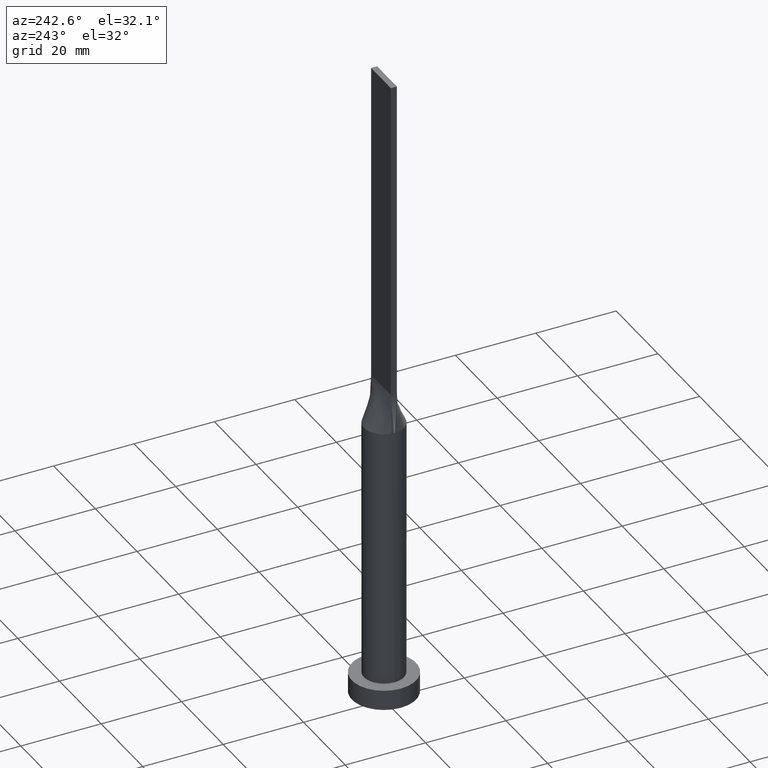
[diagram: clean part render]
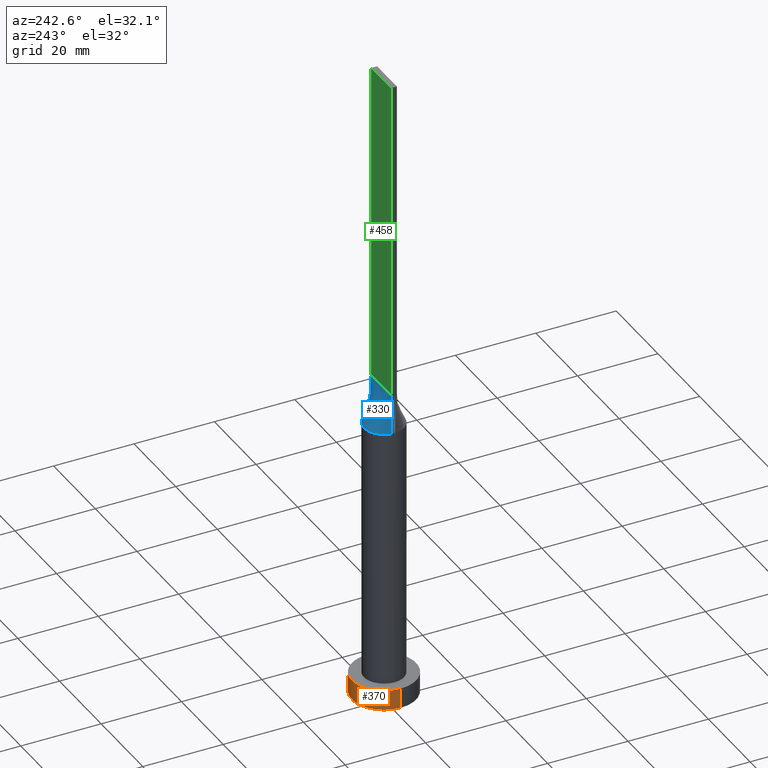
[diagram: same view with three faces highlighted in distinct colors, each labeled with its STEP entity id]
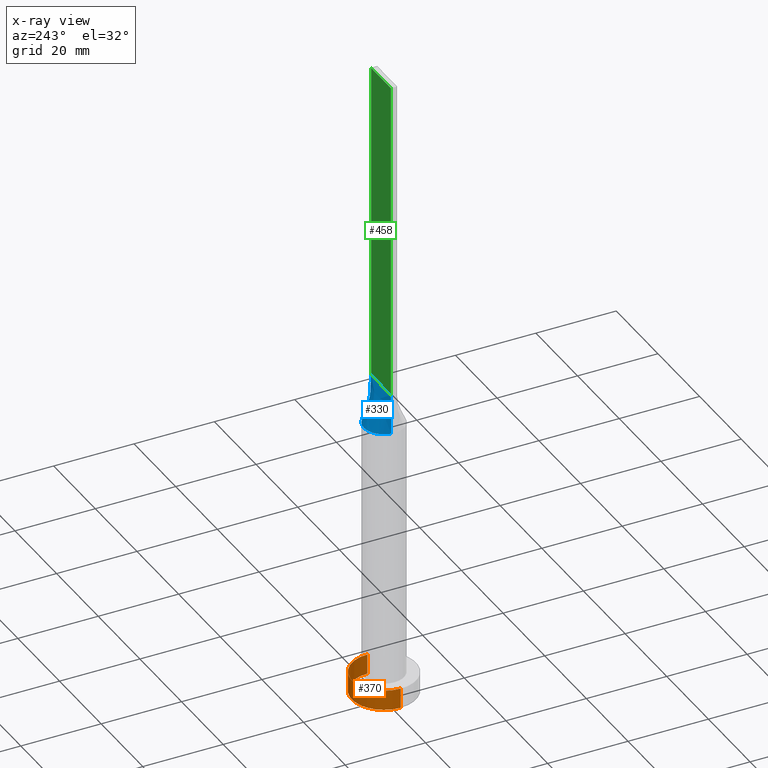
[diagram: x-ray of the same camera — body ghosted, the three highlighted faces saturated]
A machine part, auxiliary view with three faces highlighted in distinct colors.
The next image is the same camera in x-ray (body ghosted, the three faces saturated) — at least one of them is partly hidden behind the body in this view.
Their STEP definitions:

[orange] entity #370 — the highlighted cylindrical surface (edge-blend (fillet) strip) has radius 8 mm, axis along (-0, -0, -1).
#19 = EDGE_CURVE ( 'NONE', #613, #430, #517, .T. ) ;
#42 = ORIENTED_EDGE ( 'NONE', *, *, #19, .F. ) ;
#100 = CYLINDRICAL_SURFACE ( 'NONE', #409, 8.000000000000000000 ) ;
#109 = DIRECTION ( 'NONE',  ( -0.000000000000000000, -0.000000000000000000, -1.000000000000000000 ) ) ;
#116 = CARTESIAN_POINT ( 'NONE',  ( -8.000000000000000000, 0.000000000000000000, 0.000000000000000000 ) ) ;
#134 = DIRECTION ( 'NONE',  ( 0.000000000000000000, 0.000000000000000000, 1.000000000000000000 ) ) ;
#139 = DIRECTION ( 'NONE',  ( 1.000000000000000000, 0.000000000000000000, 0.000000000000000000 ) ) ;
#160 = CARTESIAN_POINT ( 'NONE',  ( 8.000000000000000000, 9.797174393178825657E-16, 5.000000000000000000 ) ) ;
#162 = AXIS2_PLACEMENT_3D ( 'NONE', #484, #289, #196 ) ;
#173 = EDGE_CURVE ( 'NONE', #430, #604, #244, .T. ) ;
#196 = DIRECTION ( 'NONE',  ( 1.000000000000000000, 0.000000000000000000, 0.000000000000000000 ) ) ;
#202 = DIRECTION ( 'NONE',  ( -0.000000000000000000, -0.000000000000000000, -1.000000000000000000 ) ) ;
#204 = CARTESIAN_POINT ( 'NONE',  ( 8.000000000000000000, 9.797174393178825657E-16, 0.000000000000000000 ) ) ;
#223 = ORIENTED_EDGE ( 'NONE', *, *, #551, .T. ) ;
#243 = FACE_OUTER_BOUND ( 'NONE', #311, .T. ) ;
#244 = LINE ( 'NONE', #485, #278 ) ;
#278 = VECTOR ( 'NONE', #450, 1000.000000000000000 ) ;
#286 = CARTESIAN_POINT ( 'NONE',  ( 0.000000000000000000, 0.000000000000000000, 5.000000000000000000 ) ) ;
#289 = DIRECTION ( 'NONE',  ( 0.000000000000000000, 0.000000000000000000, 1.000000000000000000 ) ) ;
#311 = EDGE_LOOP ( 'NONE', ( #42, #223, #480, #338 ) ) ;
#338 = ORIENTED_EDGE ( 'NONE', *, *, #173, .F. ) ;
#341 = VECTOR ( 'NONE', #109, 1000.000000000000000 ) ;
#370 = ADVANCED_FACE ( 'NONE', ( #243 ), #100, .T. ) ;
#381 = EDGE_CURVE ( 'NONE', #425, #604, #432, .T. ) ;
#382 = CARTESIAN_POINT ( 'NONE',  ( 0.000000000000000000, 0.000000000000000000, 5.000000000000000000 ) ) ;
#389 = AXIS2_PLACEMENT_3D ( 'NONE', #382, #134, #139 ) ;
#409 = AXIS2_PLACEMENT_3D ( 'NONE', #286, #202, #524 ) ;
#412 = LINE ( 'NONE', #160, #341 ) ;
#425 = VERTEX_POINT ( 'NONE', #204 ) ;
#430 = VERTEX_POINT ( 'NONE', #581 ) ;
#432 = CIRCLE ( 'NONE', #162, 8.000000000000000000 ) ;
#450 = DIRECTION ( 'NONE',  ( -0.000000000000000000, -0.000000000000000000, -1.000000000000000000 ) ) ;
#480 = ORIENTED_EDGE ( 'NONE', *, *, #381, .T. ) ;
#484 = CARTESIAN_POINT ( 'NONE',  ( 0.000000000000000000, 0.000000000000000000, 0.000000000000000000 ) ) ;
#485 = CARTESIAN_POINT ( 'NONE',  ( -8.000000000000000000, 0.000000000000000000, 5.000000000000000000 ) ) ;
#517 = CIRCLE ( 'NONE', #389, 8.000000000000000000 ) ;
#524 = DIRECTION ( 'NONE',  ( -1.000000000000000000, 0.000000000000000000, 0.000000000000000000 ) ) ;
#551 = EDGE_CURVE ( 'NONE', #613, #425, #412, .T. ) ;
#581 = CARTESIAN_POINT ( 'NONE',  ( -8.000000000000000000, 0.000000000000000000, 5.000000000000000000 ) ) ;
#586 = CARTESIAN_POINT ( 'NONE',  ( 8.000000000000000000, 9.797174393178825657E-16, 5.000000000000000000 ) ) ;
#604 = VERTEX_POINT ( 'NONE', #116 ) ;
#613 = VERTEX_POINT ( 'NONE', #586 ) ;

[blue] entity #330 — the highlighted face is a freeform B-spline surface patch.
#3 = CARTESIAN_POINT ( 'NONE',  ( 4.029217956433126524, 3.021257902548482477, 70.00000000000001421 ) ) ;
#4 = EDGE_CURVE ( 'NONE', #115, #18, #372, .T. ) ;
#10 = CARTESIAN_POINT ( 'NONE',  ( -4.029217956433124748, 3.021257902548482033, 70.00000000000001421 ) ) ;
#18 = VERTEX_POINT ( 'NONE', #334 ) ;
#34 = CARTESIAN_POINT ( 'NONE',  ( 2.353781608410062454, 4.424438117685770777, 70.00000000000001421 ) ) ;
#35 = CARTESIAN_POINT ( 'NONE',  ( 4.874625637456157179, 1.186344398896585606, 70.00000000000001421 ) ) ;
#37 = CARTESIAN_POINT ( 'NONE',  ( -0.3560391241594593192, 5.000000000000000000, 70.00000000000001421 ) ) ;
#43 = CARTESIAN_POINT ( 'NONE',  ( -1.732223102076449806, 4.702695359254402518, 69.99999999999998579 ) ) ;
#44 = EDGE_CURVE ( 'NONE', #179, #84, #256, .T. ) ;
#50 = CARTESIAN_POINT ( 'NONE',  ( 2.643217737595826566, 4.256483892511437439, 69.99999999999998579 ) ) ;
#53 = CARTESIAN_POINT ( 'NONE',  ( -3.404830936252120299, 3.673931880027067720, 70.00000000000001421 ) ) ;
#55 = CARTESIAN_POINT ( 'NONE',  ( -3.168723755431092748, 3.881165404529570484, 69.99999999999998579 ) ) ;
#57 = CARTESIAN_POINT ( 'NONE',  ( -1.583333333333335924, 0.7500000000000002220, 79.99999999999997158 ) ) ;
#70 = EDGE_CURVE ( 'NONE', #179, #115, #387, .T. ) ;
#79 = EDGE_CURVE ( 'NONE', #84, #18, #575, .T. ) ;
#84 = VERTEX_POINT ( 'NONE', #150 ) ;
#88 = VECTOR ( 'NONE', #200, 1000.000000000000114 ) ;
#91 = CARTESIAN_POINT ( 'NONE',  ( -0.7119876437238006339, 4.961551549233178982, 70.00000000000000000 ) ) ;
#95 = CARTESIAN_POINT ( 'NONE',  ( 1.979166666666662078, 0.7500000000000002220, 79.99999999999998579 ) ) ;
#99 = ORIENTED_EDGE ( 'NONE', *, *, #44, .T. ) ;
#101 = CARTESIAN_POINT ( 'NONE',  ( -0.7119876437238006339, 4.961551549233178982, 70.00000000000000000 ) ) ;
#105 = CARTESIAN_POINT ( 'NONE',  ( 3.404830936252119411, 3.673931880027066388, 70.00000000000000000 ) ) ;
#107 = CARTESIAN_POINT ( 'NONE',  ( -1.732223102076449806, 4.702695359254402518, 69.99999999999998579 ) ) ;
#115 = VERTEX_POINT ( 'NONE', #340 ) ;
#138 = CARTESIAN_POINT ( 'NONE',  ( 1.583333333333328596, 0.7500000000000002220, 79.99999999999998579 ) ) ;
#146 = CARTESIAN_POINT ( 'NONE',  ( 4.938814826645345768, 0.7798128673650542853, 70.00000000000000000 ) ) ;
#149 = CARTESIAN_POINT ( 'NONE',  ( -1.979166666666668961, 0.7500000000000002220, 79.99999999999997158 ) ) ;
#150 = CARTESIAN_POINT ( 'NONE',  ( -4.938831943662458812, 0.7798155886440081286, 70.00000000000000000 ) ) ;
#151 = CARTESIAN_POINT ( 'NONE',  ( -3.166666666666668739, 0.7500000000000002220, 79.99999999999998579 ) ) ;
#154 = CARTESIAN_POINT ( 'NONE',  ( -4.938814826645345768, 0.7798128673650545073, 70.00000000000000000 ) ) ;
#155 = CARTESIAN_POINT ( 'NONE',  ( -1.400150253878312823, 4.812847332616943419, 70.00000000000001421 ) ) ;
#158 = DIRECTION ( 'NONE',  ( 0.01887803397728733332, -0.002980742206940074218, 0.9998173508241633423 ) ) ;
#178 = CARTESIAN_POINT ( 'NONE',  ( 4.753727492665065668, 1.629988260829201563, 70.00000000000000000 ) ) ;
#179 = VERTEX_POINT ( 'NONE', #590 ) ;
#188 = CARTESIAN_POINT ( 'NONE',  ( 3.166666666666663854, 0.7500000000000002220, 79.99999999999998579 ) ) ;
#197 = CARTESIAN_POINT ( 'NONE',  ( -0.3560391241594593192, 5.000000000000000000, 70.00000000000001421 ) ) ;
#199 = CARTESIAN_POINT ( 'NONE',  ( -4.874625637456156291, 1.186344398896586716, 70.00000000000000000 ) ) ;
#200 = DIRECTION ( 'NONE',  ( -0.01887803397728733332, -0.002980742206940009600, 0.9998173508241633423 ) ) ;
#203 = CARTESIAN_POINT ( 'NONE',  ( -4.029217956433124748, 3.021257902548482033, 70.00000000000001421 ) ) ;
#208 = CARTESIAN_POINT ( 'NONE',  ( -2.353781608410062010, 4.424438117685770777, 69.99999999999998579 ) ) ;
#229 = CARTESIAN_POINT ( 'NONE',  ( 1.385416666666662078, 0.7500000000000002220, 79.99999999999998579 ) ) ;
#230 = CARTESIAN_POINT ( 'NONE',  ( -4.750000000000000000, 0.7500000000000002220, 80.00000000000000000 ) ) ;
#233 = CARTESIAN_POINT ( 'NONE',  ( -0.1979166666666694052, 0.7500000000000002220, 79.99999999999997158 ) ) ;
#236 = CARTESIAN_POINT ( 'NONE',  ( -1.400150253878312823, 4.812847332616943419, 70.00000000000001421 ) ) ;
#240 = CARTESIAN_POINT ( 'NONE',  ( 2.770833333333329929, 0.7500000000000002220, 79.99999999999998579 ) ) ;
#245 = CARTESIAN_POINT ( 'NONE',  ( -2.643217737595827455, 4.256483892511438327, 70.00000000000000000 ) ) ;
#246 = CARTESIAN_POINT ( 'NONE',  ( -4.332026455536841070, 2.547220758687717801, 70.00000000000000000 ) ) ;
#250 = CARTESIAN_POINT ( 'NONE',  ( 2.353781608410062454, 4.424438117685770777, 70.00000000000001421 ) ) ;
#252 = CARTESIAN_POINT ( 'NONE',  ( -4.750000000000000000, 0.7500000000000002220, 80.00000000000000000 ) ) ;
#253 = CARTESIAN_POINT ( 'NONE',  ( -4.938831943662458812, 0.7798155886440081286, 70.00000000000000000 ) ) ;
#256 = B_SPLINE_CURVE_WITH_KNOTS ( 'NONE', 3,
 ( #323, #35, #421, #610, #3, #105, #440, #50, #250, #621, #492, #390, #434, #197, #101, #155, #107, #443, #346, #55, #53, #203, #246, #290, #304, #253 ),
 .UNSPECIFIED., .F., .F.,
 ( 4, 2, 2, 2, 2, 2, 2, 2, 2, 2, 2, 2, 4 ),
 ( 0.000000000000000000, 0.1250000000000001388, 0.2500000000000002220, 0.3125000000000002776, 0.3750000000000002776, 0.4375000000000002776, 0.5000000000000002220, 0.5625000000000002220, 0.6250000000000001110, 0.6875000000000001110, 0.7500000000000001110, 0.8750000000000001110, 1.000000000000000000 ),
 .UNSPECIFIED. ) ;
#262 = EDGE_LOOP ( 'NONE', ( #99, #554, #414, #357 ) ) ;
#273 = DIRECTION ( 'NONE',  ( -1.000000000000000000, -0.000000000000000000, -0.000000000000000000 ) ) ;
#275 = CARTESIAN_POINT ( 'NONE',  ( 2.177083333333329040, 0.7500000000000002220, 79.99999999999998579 ) ) ;
#276 = VECTOR ( 'NONE', #273, 1000.000000000000000 ) ;
#284 = CARTESIAN_POINT ( 'NONE',  ( 1.732223102076450250, 4.702695359254404295, 69.99999999999998579 ) ) ;
#290 = CARTESIAN_POINT ( 'NONE',  ( -4.753727492665067444, 1.629988260829202007, 70.00000000000001421 ) ) ;
#291 = CARTESIAN_POINT ( 'NONE',  ( -3.168723755431092748, 3.881165404529570484, 69.99999999999998579 ) ) ;
#304 = CARTESIAN_POINT ( 'NONE',  ( -4.874625637456156291, 1.186344398896586716, 70.00000000000000000 ) ) ;
#323 = CARTESIAN_POINT ( 'NONE',  ( 4.938814826645345768, 0.7798128673650538412, 70.00000000000000000 ) ) ;
#325 = CARTESIAN_POINT ( 'NONE',  ( 0.3958333333333295401, 0.7500000000000002220, 79.99999999999998579 ) ) ;
#330 = ADVANCED_FACE ( 'NONE', ( #415 ), #563, .T. ) ;
#333 = CARTESIAN_POINT ( 'NONE',  ( 3.168723755431093192, 3.881165404529570040, 69.99999999999998579 ) ) ;
#334 = CARTESIAN_POINT ( 'NONE',  ( -4.750000000000000000, 0.7500000000000002220, 80.00000000000000000 ) ) ;
#340 = CARTESIAN_POINT ( 'NONE',  ( 4.750000000000000000, 0.7500000000000002220, 80.00000000000000000 ) ) ;
#346 = CARTESIAN_POINT ( 'NONE',  ( -2.643217737595827455, 4.256483892511438327, 70.00000000000000000 ) ) ;
#349 = CARTESIAN_POINT ( 'NONE',  ( -2.177083333333335702, 0.7500000000000002220, 79.99999999999997158 ) ) ;
#357 = ORIENTED_EDGE ( 'NONE', *, *, #70, .F. ) ;
#371 = CARTESIAN_POINT ( 'NONE',  ( 3.958333333333332149, 0.7500000000000002220, 80.00000000000000000 ) ) ;
#372 = LINE ( 'NONE', #230, #276 ) ;
#374 = CARTESIAN_POINT ( 'NONE',  ( 4.332026455536839293, 2.547220758687718689, 69.99999999999998579 ) ) ;
#387 = LINE ( 'NONE', #437, #88 ) ;
#388 = CARTESIAN_POINT ( 'NONE',  ( -2.770833333333335702, 0.7500000000000002220, 79.99999999999998579 ) ) ;
#390 = CARTESIAN_POINT ( 'NONE',  ( 0.7119876437238013001, 4.961551549233180758, 70.00000000000001421 ) ) ;
#392 = CARTESIAN_POINT ( 'NONE',  ( -0.9895833333333367010, 0.7500000000000002220, 79.99999999999997158 ) ) ;
#414 = ORIENTED_EDGE ( 'NONE', *, *, #4, .F. ) ;
#415 = FACE_OUTER_BOUND ( 'NONE', #262, .T. ) ;
#419 = CARTESIAN_POINT ( 'NONE',  ( 1.400150253878312823, 4.812847332616943419, 70.00000000000000000 ) ) ;
#421 = CARTESIAN_POINT ( 'NONE',  ( 4.753727492665065668, 1.629988260829201563, 70.00000000000000000 ) ) ;
#427 = CARTESIAN_POINT ( 'NONE',  ( -0.7916666666666702934, 0.7500000000000002220, 79.99999999999997158 ) ) ;
#434 = CARTESIAN_POINT ( 'NONE',  ( 0.3560391241594590972, 5.000000000000001776, 70.00000000000001421 ) ) ;
#437 = CARTESIAN_POINT ( 'NONE',  ( 4.844407413322673328, 0.7649064336825270871, 75.00000000000001421 ) ) ;
#440 = CARTESIAN_POINT ( 'NONE',  ( 3.168723755431093192, 3.881165404529570040, 69.99999999999998579 ) ) ;
#443 = CARTESIAN_POINT ( 'NONE',  ( -2.353781608410062010, 4.424438117685770777, 69.99999999999998579 ) ) ;
#444 = CARTESIAN_POINT ( 'NONE',  ( -3.404830936252120299, 3.673931880027067720, 70.00000000000001421 ) ) ;
#465 = CARTESIAN_POINT ( 'NONE',  ( 3.404830936252119411, 3.673931880027066388, 70.00000000000000000 ) ) ;
#468 = CARTESIAN_POINT ( 'NONE',  ( 0.1979166666666636876, 0.7500000000000001110, 79.99999999999997158 ) ) ;
#472 = CARTESIAN_POINT ( 'NONE',  ( -0.3958333333333367565, 0.7500000000000002220, 79.99999999999997158 ) ) ;
#476 = CARTESIAN_POINT ( 'NONE',  ( 0.9895833333333285964, 0.7500000000000002220, 79.99999999999998579 ) ) ;
#478 = CARTESIAN_POINT ( 'NONE',  ( -4.753727492665067444, 1.629988260829202007, 70.00000000000001421 ) ) ;
#490 = CARTESIAN_POINT ( 'NONE',  ( -3.958333333333334370, 0.7500000000000002220, 79.99999999999998579 ) ) ;
#492 = CARTESIAN_POINT ( 'NONE',  ( 1.400150253878312823, 4.812847332616943419, 70.00000000000000000 ) ) ;
#509 = CARTESIAN_POINT ( 'NONE',  ( 4.750000000000000000, 0.7500000000000002220, 80.00000000000000000 ) ) ;
#512 = CARTESIAN_POINT ( 'NONE',  ( 4.874625637456157179, 1.186344398896585606, 70.00000000000001421 ) ) ;
#515 = CARTESIAN_POINT ( 'NONE',  ( 0.3560391241594590972, 5.000000000000001776, 70.00000000000001421 ) ) ;
#518 = CARTESIAN_POINT ( 'NONE',  ( 4.029217956433126524, 3.021257902548482477, 70.00000000000001421 ) ) ;
#533 = CARTESIAN_POINT ( 'NONE',  ( -4.332026455536841070, 2.547220758687717801, 70.00000000000000000 ) ) ;
#554 = ORIENTED_EDGE ( 'NONE', *, *, #79, .T. ) ;
#561 = CARTESIAN_POINT ( 'NONE',  ( 0.7119876437238013001, 4.961551549233180758, 70.00000000000001421 ) ) ;
#563 = B_SPLINE_SURFACE_WITH_KNOTS ( 'NONE', 3, 1, ( 
 ( #146, #509 ),
 ( #512, #603 ),
 ( #178, #371 ),
 ( #374, #188 ),
 ( #518, #240 ),
 ( #465, #275 ),
 ( #333, #95 ),
 ( #565, #138 ),
 ( #34, #229 ),
 ( #284, #476 ),
 ( #419, #609 ),
 ( #561, #325 ),
 ( #515, #468 ),
 ( #37, #233 ),
 ( #91, #472 ),
 ( #236, #427 ),
 ( #43, #392 ),
 ( #208, #583 ),
 ( #245, #57 ),
 ( #291, #149 ),
 ( #444, #349 ),
 ( #10, #388 ),
 ( #533, #151 ),
 ( #478, #490 ),
 ( #199, #574 ),
 ( #154, #252 ) ),
 .UNSPECIFIED., .F., .F., .F.,
 ( 4, 2, 2, 2, 2, 2, 2, 2, 2, 2, 2, 2, 4 ),
 ( 2, 2 ),
 ( 0.000000000000000000, 0.1250000000000001388, 0.2500000000000002220, 0.3125000000000002776, 0.3750000000000002776, 0.4375000000000002776, 0.5000000000000002220, 0.5625000000000002220, 0.6250000000000001110, 0.6875000000000001110, 0.7500000000000001110, 0.8750000000000001110, 1.000000000000000000 ),
 ( 0.000000000000000000, 1.000000000000000000 ),
 .UNSPECIFIED. ) ;
#565 = CARTESIAN_POINT ( 'NONE',  ( 2.643217737595826566, 4.256483892511437439, 69.99999999999998579 ) ) ;
#574 = CARTESIAN_POINT ( 'NONE',  ( -4.354166666666666963, 0.7500000000000002220, 79.99999999999998579 ) ) ;
#575 = LINE ( 'NONE', #582, #594 ) ;
#582 = CARTESIAN_POINT ( 'NONE',  ( -4.844407413322673328, 0.7649064336825274202, 75.00000000000001421 ) ) ;
#583 = CARTESIAN_POINT ( 'NONE',  ( -1.385416666666669405, 0.7500000000000002220, 79.99999999999997158 ) ) ;
#590 = CARTESIAN_POINT ( 'NONE',  ( 4.938814826645345768, 0.7798128673650538412, 70.00000000000000000 ) ) ;
#594 = VECTOR ( 'NONE', #158, 1000.000000000000114 ) ;
#603 = CARTESIAN_POINT ( 'NONE',  ( 4.354166666666666075, 0.7500000000000002220, 80.00000000000000000 ) ) ;
#609 = CARTESIAN_POINT ( 'NONE',  ( 0.7916666666666619667, 0.7500000000000002220, 79.99999999999998579 ) ) ;
#610 = CARTESIAN_POINT ( 'NONE',  ( 4.332026455536839293, 2.547220758687718689, 69.99999999999998579 ) ) ;
#621 = CARTESIAN_POINT ( 'NONE',  ( 1.732223102076450250, 4.702695359254404295, 69.99999999999998579 ) ) ;

[green] entity #458 — the highlighted planar face has unit normal (0, -1, 0).
#4 = EDGE_CURVE ( 'NONE', #115, #18, #372, .T. ) ;
#18 = VERTEX_POINT ( 'NONE', #334 ) ;
#39 = EDGE_CURVE ( 'NONE', #182, #115, #96, .T. ) ;
#63 = CARTESIAN_POINT ( 'NONE',  ( 4.750000000000000000, 0.7500000000000002220, 160.0000000000000000 ) ) ;
#68 = LINE ( 'NONE', #264, #431 ) ;
#81 = ORIENTED_EDGE ( 'NONE', *, *, #336, .F. ) ;
#96 = LINE ( 'NONE', #477, #117 ) ;
#115 = VERTEX_POINT ( 'NONE', #340 ) ;
#117 = VECTOR ( 'NONE', #242, 1000.000000000000000 ) ;
#127 = EDGE_LOOP ( 'NONE', ( #165, #498, #81, #316 ) ) ;
#165 = ORIENTED_EDGE ( 'NONE', *, *, #4, .T. ) ;
#182 = VERTEX_POINT ( 'NONE', #222 ) ;
#212 = AXIS2_PLACEMENT_3D ( 'NONE', #63, #257, #217 ) ;
#217 = DIRECTION ( 'NONE',  ( 0.000000000000000000, -0.000000000000000000, -1.000000000000000000 ) ) ;
#222 = CARTESIAN_POINT ( 'NONE',  ( 4.750000000000000000, 0.7500000000000002220, 160.0000000000000000 ) ) ;
#230 = CARTESIAN_POINT ( 'NONE',  ( -4.750000000000000000, 0.7500000000000002220, 80.00000000000000000 ) ) ;
#242 = DIRECTION ( 'NONE',  ( -0.000000000000000000, -0.000000000000000000, -1.000000000000000000 ) ) ;
#257 = DIRECTION ( 'NONE',  ( 0.000000000000000000, -1.000000000000000000, 0.000000000000000000 ) ) ;
#261 = DIRECTION ( 'NONE',  ( -0.000000000000000000, -0.000000000000000000, -1.000000000000000000 ) ) ;
#264 = CARTESIAN_POINT ( 'NONE',  ( -4.750000000000000000, 0.7500000000000002220, 160.0000000000000000 ) ) ;
#266 = PLANE ( 'NONE',  #212 ) ;
#273 = DIRECTION ( 'NONE',  ( -1.000000000000000000, -0.000000000000000000, -0.000000000000000000 ) ) ;
#276 = VECTOR ( 'NONE', #273, 1000.000000000000000 ) ;
#282 = EDGE_CURVE ( 'NONE', #588, #18, #68, .T. ) ;
#316 = ORIENTED_EDGE ( 'NONE', *, *, #39, .T. ) ;
#319 = VECTOR ( 'NONE', #345, 1000.000000000000000 ) ;
#334 = CARTESIAN_POINT ( 'NONE',  ( -4.750000000000000000, 0.7500000000000002220, 80.00000000000000000 ) ) ;
#336 = EDGE_CURVE ( 'NONE', #182, #588, #386, .T. ) ;
#339 = CARTESIAN_POINT ( 'NONE',  ( 4.750000000000000000, 0.7500000000000002220, 160.0000000000000000 ) ) ;
#340 = CARTESIAN_POINT ( 'NONE',  ( 4.750000000000000000, 0.7500000000000002220, 80.00000000000000000 ) ) ;
#345 = DIRECTION ( 'NONE',  ( -1.000000000000000000, 0.000000000000000000, 0.000000000000000000 ) ) ;
#359 = CARTESIAN_POINT ( 'NONE',  ( -4.750000000000000000, 0.7500000000000002220, 160.0000000000000000 ) ) ;
#372 = LINE ( 'NONE', #230, #276 ) ;
#386 = LINE ( 'NONE', #339, #319 ) ;
#431 = VECTOR ( 'NONE', #261, 1000.000000000000000 ) ;
#458 = ADVANCED_FACE ( 'NONE', ( #544 ), #266, .F. ) ;
#477 = CARTESIAN_POINT ( 'NONE',  ( 4.750000000000000000, 0.7500000000000002220, 160.0000000000000000 ) ) ;
#498 = ORIENTED_EDGE ( 'NONE', *, *, #282, .F. ) ;
#544 = FACE_OUTER_BOUND ( 'NONE', #127, .T. ) ;
#588 = VERTEX_POINT ( 'NONE', #359 ) ;